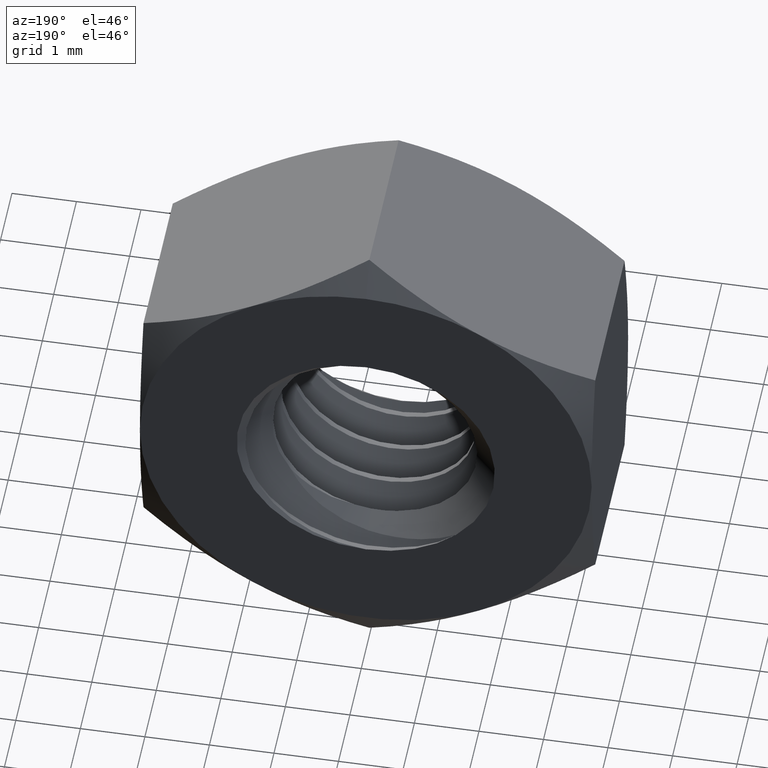
[diagram: clean part render]
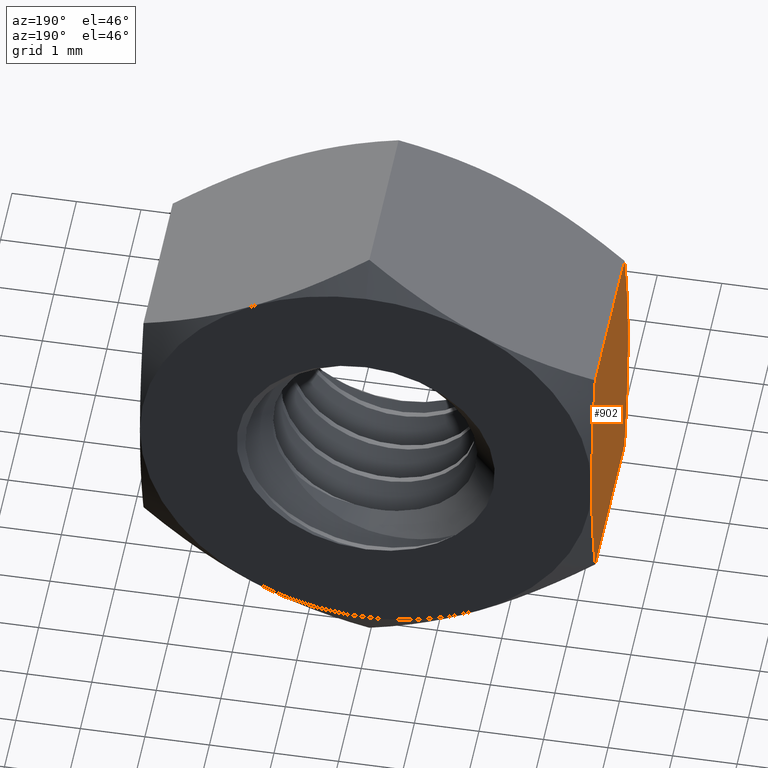
[diagram: same view with one face highlighted and labeled with its STEP entity id]
A machine part, auxiliary view. The second image highlights one B-rep face of the part: STEP entity #902.
In plain terms, the highlighted planar face has unit normal (1, 0, 0).
Its self-contained STEP definition (entity closure, byte-faithful):
#14 = LINE ( 'NONE', #765, #1983 ) ;
#50 = CARTESIAN_POINT ( 'NONE',  ( -3.500000000000001300, 1.600000000000000100, 0.0000000000000000000 ) ) ;
#64 = CARTESIAN_POINT ( 'NONE',  ( -3.500000000000001300, -1.381757144928151800, 1.693837600255597000 ) ) ;
#65 = EDGE_CURVE ( 'NONE', #564, #634, #169, .T. ) ;
#74 = B_SPLINE_CURVE_WITH_KNOTS ( 'NONE', 3,
 ( #620, #164, #1913, #1097, #1402, #515 ),
 .UNSPECIFIED., .F., .F.,
 ( 4, 2, 4 ),
 ( 0.003792108599009430400, 0.004815123802511545200, 0.005838139006013660100 ),
 .UNSPECIFIED. ) ;
#94 = CARTESIAN_POINT ( 'NONE',  ( -3.500000000000001800, -1.461860585609718200, -1.355280572397355300 ) ) ;
#103 = B_SPLINE_CURVE_WITH_KNOTS ( 'NONE', 3,
 ( #1445, #212, #818, #371, #64, #1916 ),
 .UNSPECIFIED., .F., .F.,
 ( 4, 2, 4 ),
 ( 0.005838139006013660100, 0.006861999454992912000, 0.007885859903972163000 ),
 .UNSPECIFIED. ) ;
#164 = CARTESIAN_POINT ( 'NONE',  ( -3.500000000000002200, 1.382421078745955200, -1.691537666045035000 ) ) ;
#169 = LINE ( 'NONE', #436, #983 ) ;
#204 = CARTESIAN_POINT ( 'NONE',  ( -3.500000000000002200, 1.600000000000000300, 0.3423287572276461100 ) ) ;
#212 = CARTESIAN_POINT ( 'NONE',  ( -3.500000000000002200, -1.600000000000000300, 0.3423287572276461100 ) ) ;
#230 = DIRECTION ( 'NONE',  ( 1.000000000000000000, 0.0000000000000000000, 0.0000000000000000000 ) ) ;
#351 = CARTESIAN_POINT ( 'NONE',  ( -3.500000000000001800, 1.569728145325834900, 0.6887644558481831300 ) ) ;
#371 = CARTESIAN_POINT ( 'NONE',  ( -3.500000000000000900, -1.460261472206185500, 1.362879585871372500 ) ) ;
#411 = B_SPLINE_CURVE_WITH_KNOTS ( 'NONE', 3,
 ( #856, #713, #94, #414, #1178, #1326 ),
 .UNSPECIFIED., .F., .F.,
 ( 4, 2, 4 ),
 ( 0.003792108599009430400, 0.004815123802511545200, 0.005838139006013660100 ),
 .UNSPECIFIED. ) ;
#414 = CARTESIAN_POINT ( 'NONE',  ( -3.500000000000000900, -1.570560040290953400, -0.6813422211604953600 ) ) ;
#419 = EDGE_LOOP ( 'NONE', ( #606, #1770, #1304, #1286, #1454, #1437 ) ) ;
#436 = CARTESIAN_POINT ( 'NONE',  ( -3.500000000000001300, 1.600000000000000100, -2.020725942163710700 ) ) ;
#479 = EDGE_CURVE ( 'NONE', #587, #1265, #1457, .T. ) ;
#515 = CARTESIAN_POINT ( 'NONE',  ( -3.500000000000001300, 1.600000000000000100, 0.0000000000000000000 ) ) ;
#564 = VERTEX_POINT ( 'NONE', #1586 ) ;
#587 = VERTEX_POINT ( 'NONE', #1598 ) ;
#606 = ORIENTED_EDGE ( 'NONE', *, *, #65, .T. ) ;
#620 = CARTESIAN_POINT ( 'NONE',  ( -3.500000000000001300, 1.287392608830435900, -2.020725942163836800 ) ) ;
#634 = VERTEX_POINT ( 'NONE', #919 ) ;
#673 = DIRECTION ( 'NONE',  ( 0.0000000000000000000, 0.0000000000000000000, -1.000000000000000000 ) ) ;
#706 = EDGE_CURVE ( 'NONE', #564, #587, #74, .T. ) ;
#713 = CARTESIAN_POINT ( 'NONE',  ( -3.500000000000002200, -1.382421078745955200, -1.691537666045035000 ) ) ;
#765 = CARTESIAN_POINT ( 'NONE',  ( -3.500000000000001300, 1.600000000000000100, 2.020725942163669400 ) ) ;
#818 = CARTESIAN_POINT ( 'NONE',  ( -3.500000000000001800, -1.569728145325834900, 0.6887644558481831300 ) ) ;
#856 = CARTESIAN_POINT ( 'NONE',  ( -3.500000000000001300, -1.287392608830435900, -2.020725942163836800 ) ) ;
#902 = ADVANCED_FACE ( 'NONE', ( #1587 ), #1271, .F. ) ;
#919 = CARTESIAN_POINT ( 'NONE',  ( -3.500000000000001300, -1.287392608830435900, -2.020725942163836800 ) ) ;
#983 = VECTOR ( 'NONE', #1464, 1000.000000000000000 ) ;
#1010 = CARTESIAN_POINT ( 'NONE',  ( -3.500000000000001300, -1.287392608830364700, 2.020725942163669400 ) ) ;
#1097 = CARTESIAN_POINT ( 'NONE',  ( -3.500000000000000900, 1.570560040290953400, -0.6813422211604953600 ) ) ;
#1120 = CARTESIAN_POINT ( 'NONE',  ( -3.500000000000001300, 1.287392608830364700, 2.020725942163669400 ) ) ;
#1178 = CARTESIAN_POINT ( 'NONE',  ( -3.500000000000001300, -1.600000000000000300, -0.3420461485635158400 ) ) ;
#1217 = VERTEX_POINT ( 'NONE', #1010 ) ;
#1239 = EDGE_CURVE ( 'NONE', #634, #1546, #411, .T. ) ;
#1265 = VERTEX_POINT ( 'NONE', #1635 ) ;
#1271 = PLANE ( 'NONE',  #1701 ) ;
#1286 = ORIENTED_EDGE ( 'NONE', *, *, #1711, .F. ) ;
#1294 = CARTESIAN_POINT ( 'NONE',  ( -3.500000000000000900, 1.460261472206185500, 1.362879585871372500 ) ) ;
#1304 = ORIENTED_EDGE ( 'NONE', *, *, #2015, .T. ) ;
#1326 = CARTESIAN_POINT ( 'NONE',  ( -3.500000000000001300, -1.600000000000000100, 0.0000000000000000000 ) ) ;
#1402 = CARTESIAN_POINT ( 'NONE',  ( -3.500000000000001300, 1.600000000000000300, -0.3420461485635158400 ) ) ;
#1437 = ORIENTED_EDGE ( 'NONE', *, *, #706, .F. ) ;
#1445 = CARTESIAN_POINT ( 'NONE',  ( -3.500000000000001300, -1.600000000000000100, 0.0000000000000000000 ) ) ;
#1454 = ORIENTED_EDGE ( 'NONE', *, *, #479, .F. ) ;
#1457 = B_SPLINE_CURVE_WITH_KNOTS ( 'NONE', 3,
 ( #50, #204, #351, #1294, #1758, #1120 ),
 .UNSPECIFIED., .F., .F.,
 ( 4, 2, 4 ),
 ( 0.005838139006013660100, 0.006861999454992912000, 0.007885859903972163000 ),
 .UNSPECIFIED. ) ;
#1464 = DIRECTION ( 'NONE',  ( -0.0000000000000000000, -1.000000000000000000, -0.0000000000000000000 ) ) ;
#1518 = CARTESIAN_POINT ( 'NONE',  ( -3.500000000000001300, -1.600000000000000100, 0.0000000000000000000 ) ) ;
#1546 = VERTEX_POINT ( 'NONE', #1518 ) ;
#1551 = DIRECTION ( 'NONE',  ( -0.0000000000000000000, -1.000000000000000000, -0.0000000000000000000 ) ) ;
#1586 = CARTESIAN_POINT ( 'NONE',  ( -3.500000000000001300, 1.287392608830435900, -2.020725942163836800 ) ) ;
#1587 = FACE_OUTER_BOUND ( 'NONE', #419, .T. ) ;
#1597 = CARTESIAN_POINT ( 'NONE',  ( -3.500000000000001300, 1.600000000000000100, -2.020725942163710700 ) ) ;
#1598 = CARTESIAN_POINT ( 'NONE',  ( -3.500000000000001300, 1.600000000000000100, 0.0000000000000000000 ) ) ;
#1635 = CARTESIAN_POINT ( 'NONE',  ( -3.500000000000001300, 1.287392608830364700, 2.020725942163669400 ) ) ;
#1701 = AXIS2_PLACEMENT_3D ( 'NONE', #1597, #230, #673 ) ;
#1711 = EDGE_CURVE ( 'NONE', #1265, #1217, #14, .T. ) ;
#1758 = CARTESIAN_POINT ( 'NONE',  ( -3.500000000000001300, 1.381757144928151800, 1.693837600255597000 ) ) ;
#1770 = ORIENTED_EDGE ( 'NONE', *, *, #1239, .T. ) ;
#1913 = CARTESIAN_POINT ( 'NONE',  ( -3.500000000000001800, 1.461860585609718200, -1.355280572397355300 ) ) ;
#1916 = CARTESIAN_POINT ( 'NONE',  ( -3.500000000000001300, -1.287392608830364700, 2.020725942163669400 ) ) ;
#1983 = VECTOR ( 'NONE', #1551, 1000.000000000000000 ) ;
#2015 = EDGE_CURVE ( 'NONE', #1546, #1217, #103, .T. ) ;